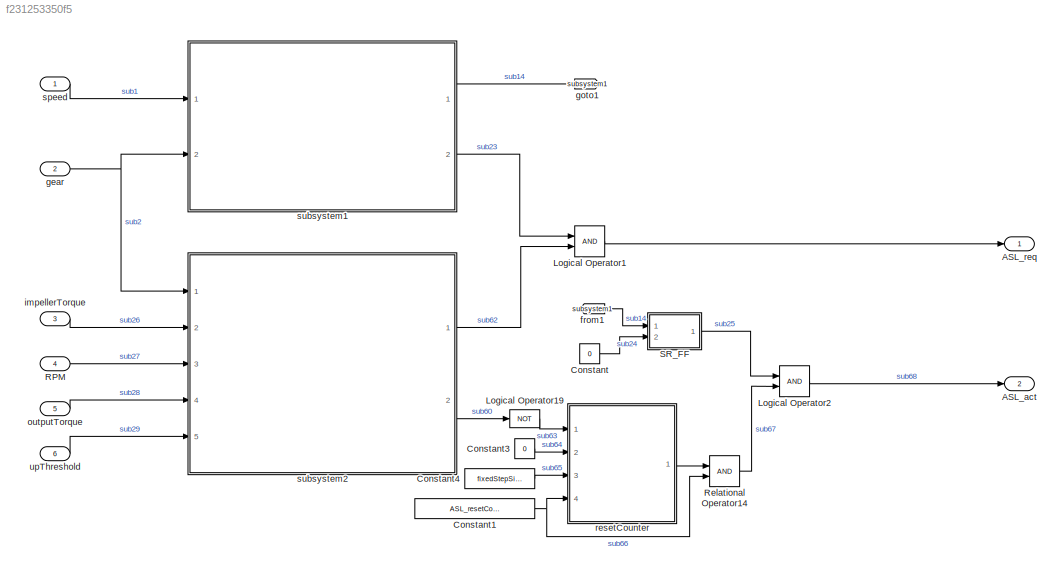
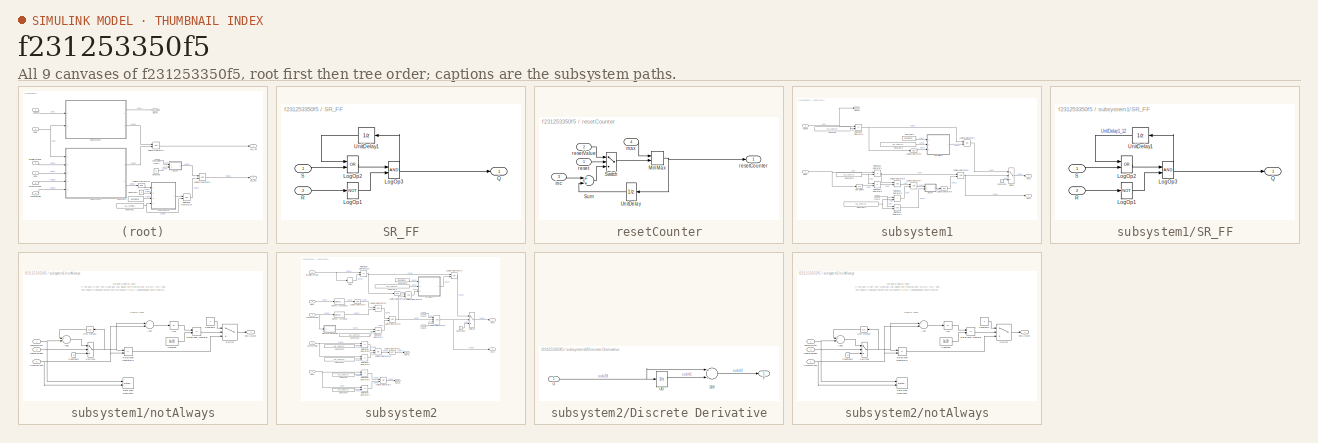
[diagram: thumbnail index - all 9 canvases of the model, root first then tree order]
MODEL slx_f231253350f5
KIND model
CONFIG AbsTol = auto
CONFIG EnableMultiTasking = off
CONFIG FixedStep = fixedStepSize
CONFIG MaxStep = auto
CONFIG MinStep = auto
CONFIG RelTol = 1e-3
CONFIG SampleTimeConstraint = Unconstrained
CONFIG Solver = FixedStepAuto
CONFIG SolverName = FixedStepAuto
CONFIG StartTime = 0.0
CONFIG StopTime = 10.0
BLOCK [Outport] ASL_act
  IconDisplay = Port number
  OutDataTypeStr = boolean
  Port = 2
  PortDimensions = 1
  SamplingMode = Sample based
  SignalType = real
  VectorParamsAs1DForOutWhenUnconnected = off
BLOCK [Outport] ASL_req
  IconDisplay = Port number
  OutDataTypeStr = boolean
  PortDimensions = 1
  SamplingMode = Sample based
  SignalType = real
  VectorParamsAs1DForOutWhenUnconnected = off
BLOCK [Constant] Constant
  OutDataTypeStr = boolean
  Value = 0
BLOCK [Constant] Constant1
  Value = ASL_resetCounterMax
BLOCK [Constant] Constant3
  Value = 0
BLOCK [Constant] Constant4
  Value = fixedStepSize
BLOCK [Logic] Logical Operator1
  AllPortsSameDT = off
  OutDataTypeStr = boolean
  Ports = [2, 1]
BLOCK [Logic] Logical Operator19
  AllPortsSameDT = off
  Operator = NOT
  OutDataTypeStr = boolean
  Ports = [1, 1]
BLOCK [Logic] Logical Operator2
  AllPortsSameDT = off
  OutDataTypeStr = boolean
  Ports = [2, 1]
BLOCK [Inport] RPM
  IconDisplay = Port number
  Port = 4
BLOCK [RelationalOperator] Relational Operator14
  InputSameDT = off
  OutDataTypeStr = boolean
  Ports = [2, 1]
BLOCK [SubSystem] SR_FF
  CopyFcn = set_param(gcbh,'LinkStatus','none');
  Ports = [2, 1]
  RequestExecContextInheritance = off
BLOCK [Logic] SR_FF/LogOp1
  Inputs = 1
  Operator = NOT
  OutDataTypeStr = boolean
  Ports = [1, 1]
  Tag = struct('inputs','1','comment',struct('text','','placement',1),'logdata',struct('maxnumvals',4096,'plotchannels',[],'loggingmode',3,'channels',1),'operator','NOT','output',struct('class','default','description','','address','','unit','-','name','$S_$B','variable','','type','Bool'),'date',733638.68643228011,'scalingvalid',0)
BLOCK [Logic] SR_FF/LogOp2
  Operator = OR
  OutDataTypeStr = boolean
  Ports = [2, 1]
  Tag = struct('inputs','2','comment',struct('text','','placement',1),'logdata',struct('maxnumvals',4096,'plotchannels',[],'loggingmode',3,'channels',1),'operator','AND','output',struct('class','default','description','','address','','unit','-','name','$S_$B','variable','','type','Bool'),'date',733638.68643680552,'scalingvalid',0)
BLOCK [Logic] SR_FF/LogOp3
  OutDataTypeStr = boolean
  Ports = [2, 1]
  Tag = struct('inputs','2','comment',struct('text','','placement',1),'logdata',struct('maxnumvals',4096,'plotchannels',[],'loggingmode',3,'channels',1),'operator','OR','output',struct('class','default','description','','address','','unit','-','name','$S_$B','variable','','type','Bool'),'date',733638.68644151615,'scalingvalid',0)
BLOCK [Outport] SR_FF/Q
  IconDisplay = Port number
  OutDataTypeStr = boolean
  VectorParamsAs1DForOutWhenUnconnected = off
BLOCK [Inport] SR_FF/R
  IconDisplay = Port number
  OutDataTypeStr = boolean
  Port = 2
BLOCK [Inport] SR_FF/S
  IconDisplay = Port number
  OutDataTypeStr = boolean
BLOCK [UnitDelay] SR_FF/UnitDelay1
  HasFrameUpgradeWarning = on
  SampleTime = -1
  Tag = struct('comment',struct('text','','placement',1),'logdata',struct('maxnumvals',4096,'plotchannels',[],'loggingmode',3,'channels',1),'output',struct('width',1,'name','$S_$B','unit','','type','Bool','offset',0,'max',NaN,'min',NaN,'freeze',1,'lsb',1,'arb',0,'class','default','address','','description','','autoscalingmode',1,'lowerheadroom',1,'upperheadroom',1,'headroomunit','bit','checkmin',0,'checkm...<+342ch>
BLOCK [From] from1
  AttributesFormatString = %<GotoTag>
  GotoTag = subsystem1
BLOCK [Inport] gear
  IconDisplay = Port number
  Port = 2
BLOCK [Goto] goto1
  AttributesFormatString = %<GotoTag>
  GotoTag = subsystem1
BLOCK [Inport] impellerTorque
  IconDisplay = Port number
  Port = 3
BLOCK [Inport] outputTorque
  IconDisplay = Port number
  Port = 5
BLOCK [SubSystem] resetCounter
  CopyFcn = set_param(gcbh,'LinkStatus','none');
  Ports = [4, 1]
  RequestExecContextInheritance = off
BLOCK [MinMax] resetCounter/MinMax
  Inputs = 2
  OutDataTypeStr = Inherit: Inherit via back propagation
  Ports = [2, 1]
  SaturateOnIntegerOverflow = off
  Tag = struct('comment',struct('text','','placement',1),'inputs','2','logdata',struct('maxnumvals',4096,'plotchannels',[],'loggingmode',3,'channels',1),'output',struct('width',1,'name','$S_$B','unit','','type','Float32','offset',0,'max',NaN,'min',NaN,'freeze',1,'lsb',1,'arb',0,'class','default','address','','description','','autoscalingmode',1,'lowerheadroom',1,'upperheadroom',1,'headroomunit','bit','che...<+151ch>
BLOCK [Sum] resetCounter/Sum
  AccumDataTypeStr = Inherit: Same as first input
  OutDataTypeStr = Inherit: Same as accumulator
  Ports = [2, 1]
  SaturateOnIntegerOverflow = off
  Tag = struct('comment',struct('text','','placement',1),'logdata',struct('maxnumvals',4096,'plotchannels',[],'loggingmode',3,'channels',1),'output',struct('width',1,'name','$S_$B','unit','','type','Float32','offset',0,'max',NaN,'min',NaN,'freeze',1,'lsb',1,'arb',0,'class','default','address','','description','','autoscalingmode',1,'lowerheadroom',1,'upperheadroom',1,'headroomunit','bit','checkmin',0,'che...<+135ch>
BLOCK [Switch] resetCounter/Switch
  Criteria = u2 ~= 0
  SaturateOnIntegerOverflow = off
  Tag = struct('comment',struct('text','','placement',1),'logdata',struct('maxnumvals',4096,'plotchannels',[],'loggingmode',3,'channels',1),'output',struct('width',1,'name','$S_$B','unit','','type','Float32','offset',0,'max',NaN,'min',NaN,'freeze',1,'lsb',1,'arb',0,'class','default','address','','description','','autoscalingmode',1,'lowerheadroom',1,'upperheadroom',1,'headroomunit','bit','checkmin',0,'che...<+388ch>
  Threshold = 0.5
BLOCK [UnitDelay] resetCounter/UnitDelay
  HasFrameUpgradeWarning = on
  SampleTime = -1
  Tag = struct('comment',struct('text','','placement',1),'logdata',struct('maxnumvals',4096,'plotchannels',[],'loggingmode',3,'channels',1),'output',struct('width',1,'name','$S_$B','unit','','type','Float32','offset',0,'max',NaN,'min',NaN,'freeze',1,'lsb',1,'arb',0,'class','default','address','','description','','autoscalingmode',1,'lowerheadroom',1,'upperheadroom',1,'headroomunit','bit','checkmin',0,'che...<+348ch>
BLOCK [Inport] resetCounter/inc
  IconDisplay = Port number
  Port = 3
BLOCK [Inport] resetCounter/max
  IconDisplay = Port number
  Port = 4
BLOCK [Inport] resetCounter/reset
  IconDisplay = Port number
BLOCK [Outport] resetCounter/resetCounter
  IconDisplay = Port number
  VectorParamsAs1DForOutWhenUnconnected = off
BLOCK [Inport] resetCounter/resetValue
  IconDisplay = Port number
  Port = 2
BLOCK [Inport] speed
  IconDisplay = Port number
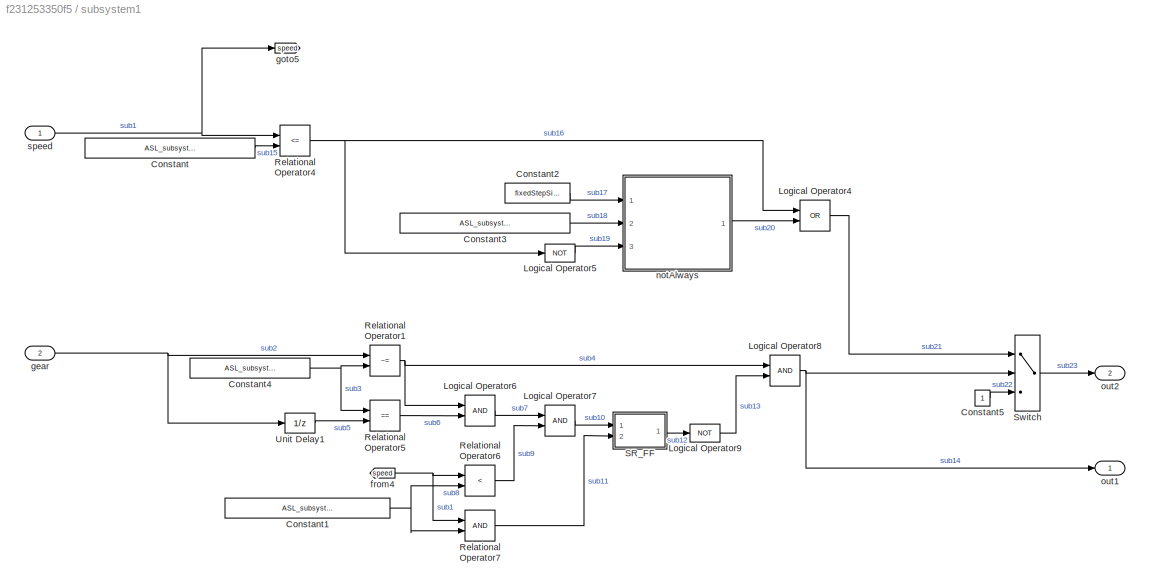
BLOCK [SubSystem] subsystem1
  Ports = [2, 2]
  RequestExecContextInheritance = off
BLOCK [Constant] subsystem1/Constant
  Value = ASL_subsystem1_speedThreshold
BLOCK [Constant] subsystem1/Constant1
  Value = ASL_subsystem1_speedThreshold
BLOCK [Constant] subsystem1/Constant2
  Value = fixedStepSize
BLOCK [Constant] subsystem1/Constant3
  Value = ASL_subsystem1_notAlwaysHorizon
BLOCK [Constant] subsystem1/Constant4
  Value = ASL_subsystem1_gear
BLOCK [Constant] subsystem1/Constant5
BLOCK [Logic] subsystem1/Logical Operator4
  AllPortsSameDT = off
  Operator = OR
  OutDataTypeStr = boolean
  Ports = [2, 1]
BLOCK [Logic] subsystem1/Logical Operator5
  AllPortsSameDT = off
  Operator = NOT
  OutDataTypeStr = boolean
  Ports = [1, 1]
BLOCK [Logic] subsystem1/Logical Operator6
  AllPortsSameDT = off
  OutDataTypeStr = boolean
  Ports = [2, 1]
BLOCK [Logic] subsystem1/Logical Operator7
  AllPortsSameDT = off
  OutDataTypeStr = boolean
  Ports = [2, 1]
BLOCK [Logic] subsystem1/Logical Operator8
  AllPortsSameDT = off
  OutDataTypeStr = boolean
  Ports = [2, 1]
BLOCK [Logic] subsystem1/Logical Operator9
  AllPortsSameDT = off
  Operator = NOT
  OutDataTypeStr = boolean
  Ports = [1, 1]
BLOCK [RelationalOperator] subsystem1/Relational Operator1
  InputSameDT = off
  Operator = ~=
  OutDataTypeStr = boolean
  Ports = [2, 1]
BLOCK [RelationalOperator] subsystem1/Relational Operator4
  InputSameDT = off
  Operator = <=
  OutDataTypeStr = boolean
  Ports = [2, 1]
BLOCK [RelationalOperator] subsystem1/Relational Operator5
  InputSameDT = off
  Operator = ==
  OutDataTypeStr = boolean
  Ports = [2, 1]
BLOCK [RelationalOperator] subsystem1/Relational Operator6
  InputSameDT = off
  Operator = <
  OutDataTypeStr = boolean
  Ports = [2, 1]
BLOCK [RelationalOperator] subsystem1/Relational Operator7
  InputSameDT = off
  OutDataTypeStr = boolean
  Ports = [2, 1]
BLOCK [SubSystem] subsystem1/SR_FF
  CopyFcn = set_param(gcbh,'LinkStatus','none');
  Ports = [2, 1]
  RequestExecContextInheritance = off
BLOCK [Logic] subsystem1/SR_FF/LogOp1
  Inputs = 1
  Operator = NOT
  OutDataTypeStr = boolean
  Ports = [1, 1]
  Tag = struct('inputs','1','comment',struct('text','','placement',1),'logdata',struct('maxnumvals',4096,'plotchannels',[],'loggingmode',3,'channels',1),'operator','NOT','output',struct('class','default','description','','address','','unit','-','name','$S_$B','variable','','type','Bool'),'date',733638.68643228011,'scalingvalid',0)
BLOCK [Logic] subsystem1/SR_FF/LogOp2
  Operator = OR
  OutDataTypeStr = boolean
  Ports = [2, 1]
  Tag = struct('inputs','2','comment',struct('text','','placement',1),'logdata',struct('maxnumvals',4096,'plotchannels',[],'loggingmode',3,'channels',1),'operator','AND','output',struct('class','default','description','','address','','unit','-','name','$S_$B','variable','','type','Bool'),'date',733638.68643680552,'scalingvalid',0)
BLOCK [Logic] subsystem1/SR_FF/LogOp3
  OutDataTypeStr = boolean
  Ports = [2, 1]
  Tag = struct('inputs','2','comment',struct('text','','placement',1),'logdata',struct('maxnumvals',4096,'plotchannels',[],'loggingmode',3,'channels',1),'operator','OR','output',struct('class','default','description','','address','','unit','-','name','$S_$B','variable','','type','Bool'),'date',733638.68644151615,'scalingvalid',0)
BLOCK [Outport] subsystem1/SR_FF/Q
  IconDisplay = Port number
  OutDataTypeStr = boolean
  VectorParamsAs1DForOutWhenUnconnected = off
BLOCK [Inport] subsystem1/SR_FF/R
  IconDisplay = Port number
  OutDataTypeStr = boolean
  Port = 2
BLOCK [Inport] subsystem1/SR_FF/S
  IconDisplay = Port number
  OutDataTypeStr = boolean
BLOCK [UnitDelay] subsystem1/SR_FF/UnitDelay1
  HasFrameUpgradeWarning = on
  SampleTime = -1
  Tag = struct('comment',struct('text','','placement',1),'logdata',struct('maxnumvals',4096,'plotchannels',[],'loggingmode',3,'channels',1),'output',struct('width',1,'name','$S_$B','unit','','type','Bool','offset',0,'max',NaN,'min',NaN,'freeze',1,'lsb',1,'arb',0,'class','default','address','','description','','autoscalingmode',1,'lowerheadroom',1,'upperheadroom',1,'headroomunit','bit','checkmin',0,'checkm...<+342ch>
BLOCK [Switch] subsystem1/Switch
  Criteria = u2 ~= 0
  InputSameDT = off
  SaturateOnIntegerOverflow = off
BLOCK [UnitDelay] subsystem1/Unit Delay1
  HasFrameUpgradeWarning = on
  InitialCondition = 1
  SampleTime = -1
BLOCK [From] subsystem1/from4
  AttributesFormatString = %<GotoTag>
  GotoTag = speed
BLOCK [Inport] subsystem1/gear
  IconDisplay = Port number
  Port = 2
BLOCK [Goto] subsystem1/goto5
  AttributesFormatString = %<GotoTag>
  GotoTag = speed
BLOCK [SubSystem] subsystem1/notAlways
  CopyFcn = set_param(gcbh,'LinkStatus','none');
  Ports = [3, 1]
  RequestExecContextInheritance = off
BLOCK [Abs] subsystem1/notAlways/Abs
  SaturateOnIntegerOverflow = off
BLOCK [Sum] subsystem1/notAlways/Add
  InputSameDT = off
  Inputs = +-
  OutDataTypeStr = Inherit: Inherit via internal rule
  Ports = [2, 1]
  SaturateOnIntegerOverflow = off
BLOCK [Sum] subsystem1/notAlways/Add2
  InputSameDT = off
  OutDataTypeStr = Inherit: Inherit via internal rule
  Ports = [2, 1]
  SaturateOnIntegerOverflow = off
BLOCK [Constant] subsystem1/notAlways/Constant
  Value = 1e-10
BLOCK [Constant] subsystem1/notAlways/Constant1
  OutDataTypeStr = boolean
BLOCK [Constant] subsystem1/notAlways/Constant8
  OutDataTypeStr = Inherit: Inherit via back propagation
  Value = 0
BLOCK [DataTypeDuplicate] subsystem1/notAlways/Data Type Duplicate
  Ports = [2]
BLOCK [RelationalOperator] subsystem1/notAlways/Relational Operator
  InputSameDT = off
  Operator = <=
  OutDataTypeStr = boolean
  Ports = [2, 1]
  RndMeth = Simplest
BLOCK [RelationalOperator] subsystem1/notAlways/Relational Operator14
  InputSameDT = off
  Operator = <=
  OutDataTypeStr = boolean
  Ports = [2, 1]
BLOCK [Switch] subsystem1/notAlways/Switch
  Criteria = u2 ~= 0
  InputSameDT = off
  SaturateOnIntegerOverflow = off
BLOCK [Switch] subsystem1/notAlways/Switch6
  Criteria = u2 ~= 0
  InputSameDT = off
  SaturateOnIntegerOverflow = off
BLOCK [UnitDelay] subsystem1/notAlways/Unit Delay2
  HasFrameUpgradeWarning = on
  SampleTime = -1
BLOCK [Inport] subsystem1/notAlways/inputBoolean
  IconDisplay = Port number
  Port = 3
BLOCK [Outport] subsystem1/notAlways/notAlways
  IconDisplay = Port number
  VectorParamsAs1DForOutWhenUnconnected = off
BLOCK [Inport] subsystem1/notAlways/sampleTime
  IconDisplay = Port number
BLOCK [Inport] subsystem1/notAlways/timeHorizon
  IconDisplay = Port number
  Port = 2
BLOCK [Outport] subsystem1/out1
  IconDisplay = Port number
  VectorParamsAs1DForOutWhenUnconnected = off
BLOCK [Outport] subsystem1/out2
  IconDisplay = Port number
  Port = 2
  VectorParamsAs1DForOutWhenUnconnected = off
BLOCK [Inport] subsystem1/speed
  IconDisplay = Port number
  Interpolate = off
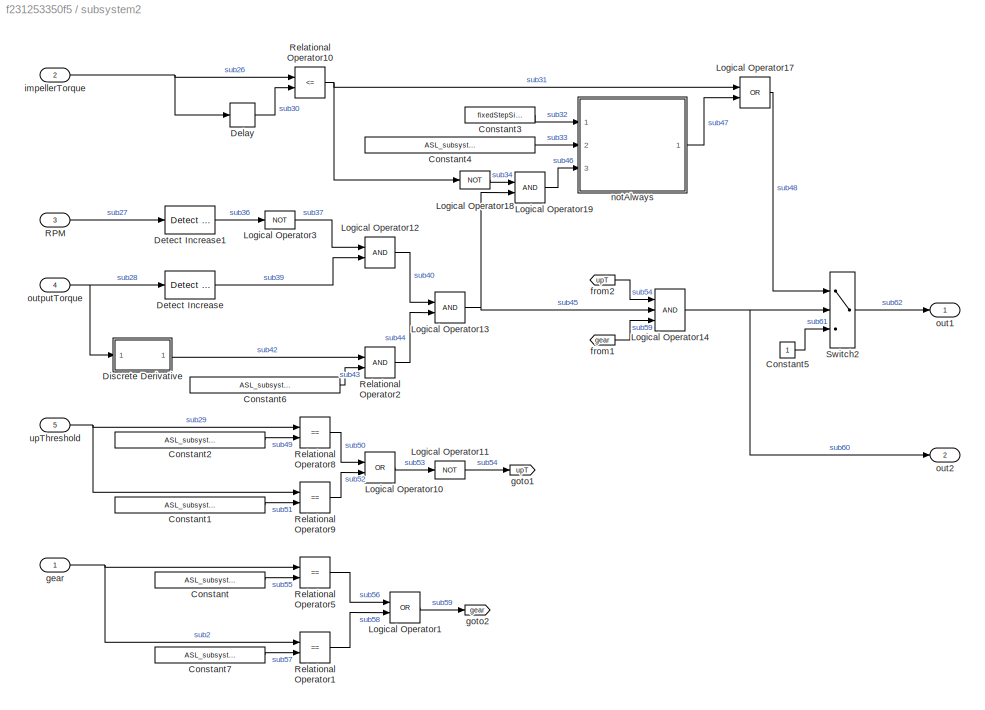
BLOCK [SubSystem] subsystem2
  Ports = [5, 2]
  RequestExecContextInheritance = off
BLOCK [Constant] subsystem2/Constant
  Value = ASL_subsystem2_gear
BLOCK [Constant] subsystem2/Constant1
  Value = ASL_subsystem2_upThreshold2
BLOCK [Constant] subsystem2/Constant2
  Value = ASL_subsystem2_upThreshold1
BLOCK [Constant] subsystem2/Constant3
  Value = fixedStepSize
BLOCK [Constant] subsystem2/Constant4
  Value = ASL_subsystem2_notAlwaysHorizon
BLOCK [Constant] subsystem2/Constant5
BLOCK [Constant] subsystem2/Constant6
  Value = ASL_subsystem2_TorqueValue
BLOCK [Constant] subsystem2/Constant7
  Value = ASL_subsystem2_gear2
BLOCK [Delay] subsystem2/Delay
  DelayLength = 1
  InitialCondition = 0
  InputPortMap = u0
  Ports = [1, 1]
BLOCK [Reference] subsystem2/Detect Increase  REF=simulink/Logic and Bit
Operations/Detect
Increase
  Ports = [1, 1]
  SourceBlock = simulink/Logic and Bit\nOperations/Detect\nIncrease
  SourceProductBaseCode = SL
  SourceProductName = Simulink
  SourceType = Detect Increase
BLOCK [Reference] subsystem2/Detect Increase1  REF=simulink/Logic and Bit
Operations/Detect
Increase
  Ports = [1, 1]
  SourceBlock = simulink/Logic and Bit\nOperations/Detect\nIncrease
  SourceProductBaseCode = SL
  SourceProductName = Simulink
  SourceType = Detect Increase
BLOCK [SubSystem] subsystem2/Discrete Derivative
  Ports = [1, 1]
  RequestExecContextInheritance = off
BLOCK [Sum] subsystem2/Discrete Derivative/Diff
  Description = Add in CPU
  InputSameDT = off
  Inputs = +-
  OutDataTypeStr = double
  OutMax = 100000
  OutMin = -10000
  Ports = [2, 1]
  SaturateOnIntegerOverflow = off
BLOCK [Inport] subsystem2/Discrete Derivative/U
  IconDisplay = Port number
BLOCK [UnitDelay] subsystem2/Discrete Derivative/UD
  Description = Store in Global RAM
  DisableCoverage = on
  HasFrameUpgradeWarning = on
  SampleTime = -1
BLOCK [Outport] subsystem2/Discrete Derivative/Y
  IconDisplay = Port number
  InitialOutput = 0
  OutMax = 10000
  OutMin = -10000
  VectorParamsAs1DForOutWhenUnconnected = off
BLOCK [Logic] subsystem2/Logical Operator1
  AllPortsSameDT = off
  Operator = OR
  OutDataTypeStr = boolean
  Ports = [2, 1]
BLOCK [Logic] subsystem2/Logical Operator10
  AllPortsSameDT = off
  Operator = OR
  OutDataTypeStr = boolean
  Ports = [2, 1]
BLOCK [Logic] subsystem2/Logical Operator11
  AllPortsSameDT = off
  Operator = NOT
  OutDataTypeStr = boolean
  Ports = [1, 1]
BLOCK [Logic] subsystem2/Logical Operator12
  AllPortsSameDT = off
  OutDataTypeStr = boolean
  Ports = [2, 1]
BLOCK [Logic] subsystem2/Logical Operator13
  AllPortsSameDT = off
  OutDataTypeStr = boolean
  Ports = [2, 1]
BLOCK [Logic] subsystem2/Logical Operator14
  AllPortsSameDT = off
  Inputs = 3
  OutDataTypeStr = boolean
  Ports = [3, 1]
BLOCK [Logic] subsystem2/Logical Operator17
  AllPortsSameDT = off
  Operator = OR
  OutDataTypeStr = boolean
  Ports = [2, 1]
BLOCK [Logic] subsystem2/Logical Operator18
  AllPortsSameDT = off
  Operator = NOT
  OutDataTypeStr = boolean
  Ports = [1, 1]
BLOCK [Logic] subsystem2/Logical Operator19
  AllPortsSameDT = off
  OutDataTypeStr = boolean
  Ports = [2, 1]
BLOCK [Logic] subsystem2/Logical Operator3
  AllPortsSameDT = off
  Operator = NOT
  OutDataTypeStr = boolean
  Ports = [1, 1]
BLOCK [Inport] subsystem2/RPM
  IconDisplay = Port number
  Port = 3
BLOCK [RelationalOperator] subsystem2/Relational Operator1
  InputSameDT = off
  Operator = ==
  OutDataTypeStr = boolean
  Ports = [2, 1]
BLOCK [RelationalOperator] subsystem2/Relational Operator10
  InputSameDT = off
  Operator = <=
  OutDataTypeStr = boolean
  Ports = [2, 1]
BLOCK [RelationalOperator] subsystem2/Relational Operator2
  InputSameDT = off
  OutDataTypeStr = boolean
  Ports = [2, 1]
BLOCK [RelationalOperator] subsystem2/Relational Operator5
  InputSameDT = off
  Operator = ==
  OutDataTypeStr = boolean
  Ports = [2, 1]
BLOCK [RelationalOperator] subsystem2/Relational Operator8
  InputSameDT = off
  Operator = ==
  OutDataTypeStr = boolean
  Ports = [2, 1]
BLOCK [RelationalOperator] subsystem2/Relational Operator9
  InputSameDT = off
  Operator = ==
  OutDataTypeStr = boolean
  Ports = [2, 1]
BLOCK [Switch] subsystem2/Switch2
  Criteria = u2 ~= 0
  InputSameDT = off
  SaturateOnIntegerOverflow = off
BLOCK [From] subsystem2/from1
  AttributesFormatString = %<GotoTag>
  GotoTag = gear
BLOCK [From] subsystem2/from2
  AttributesFormatString = %<GotoTag>
  GotoTag = upT
BLOCK [Inport] subsystem2/gear
  IconDisplay = Port number
  Interpolate = off
BLOCK [Goto] subsystem2/goto1
  AttributesFormatString = %<GotoTag>
  GotoTag = upT
BLOCK [Goto] subsystem2/goto2
  AttributesFormatString = %<GotoTag>
  GotoTag = gear
BLOCK [Inport] subsystem2/impellerTorque
  IconDisplay = Port number
  Port = 2
BLOCK [SubSystem] subsystem2/notAlways
  CopyFcn = set_param(gcbh,'LinkStatus','none');
  Ports = [3, 1]
  RequestExecContextInheritance = off
BLOCK [Abs] subsystem2/notAlways/Abs
  SaturateOnIntegerOverflow = off
BLOCK [Sum] subsystem2/notAlways/Add
  InputSameDT = off
  Inputs = +-
  OutDataTypeStr = Inherit: Inherit via internal rule
  Ports = [2, 1]
  SaturateOnIntegerOverflow = off
BLOCK [Sum] subsystem2/notAlways/Add2
  InputSameDT = off
  OutDataTypeStr = Inherit: Inherit via internal rule
  Ports = [2, 1]
  SaturateOnIntegerOverflow = off
BLOCK [Constant] subsystem2/notAlways/Constant
  Value = 1e-10
BLOCK [Constant] subsystem2/notAlways/Constant1
  OutDataTypeStr = boolean
BLOCK [Constant] subsystem2/notAlways/Constant8
  OutDataTypeStr = Inherit: Inherit via back propagation
  Value = 0
BLOCK [DataTypeDuplicate] subsystem2/notAlways/Data Type Duplicate
  Ports = [2]
BLOCK [RelationalOperator] subsystem2/notAlways/Relational Operator
  InputSameDT = off
  Operator = <=
  OutDataTypeStr = boolean
  Ports = [2, 1]
  RndMeth = Simplest
BLOCK [RelationalOperator] subsystem2/notAlways/Relational Operator14
  InputSameDT = off
  Operator = <=
  OutDataTypeStr = boolean
  Ports = [2, 1]
BLOCK [Switch] subsystem2/notAlways/Switch
  Criteria = u2 ~= 0
  InputSameDT = off
  SaturateOnIntegerOverflow = off
BLOCK [Switch] subsystem2/notAlways/Switch6
  Criteria = u2 ~= 0
  InputSameDT = off
  SaturateOnIntegerOverflow = off
BLOCK [UnitDelay] subsystem2/notAlways/Unit Delay2
  HasFrameUpgradeWarning = on
  SampleTime = -1
BLOCK [Inport] subsystem2/notAlways/inputBoolean
  IconDisplay = Port number
  Port = 3
BLOCK [Outport] subsystem2/notAlways/notAlways
  IconDisplay = Port number
  VectorParamsAs1DForOutWhenUnconnected = off
BLOCK [Inport] subsystem2/notAlways/sampleTime
  IconDisplay = Port number
BLOCK [Inport] subsystem2/notAlways/timeHorizon
  IconDisplay = Port number
  Port = 2
BLOCK [Outport] subsystem2/out1
  IconDisplay = Port number
  VectorParamsAs1DForOutWhenUnconnected = off
BLOCK [Outport] subsystem2/out2
  IconDisplay = Port number
  Port = 2
  VectorParamsAs1DForOutWhenUnconnected = off
BLOCK [Inport] subsystem2/outputTorque
  IconDisplay = Port number
  Port = 4
BLOCK [Inport] subsystem2/upThreshold
  IconDisplay = Port number
  Interpolate = off
  Port = 5
BLOCK [Inport] upThreshold
  IconDisplay = Port number
  Port = 6
ANNOTATION subsystem1/notAlways: We add a special case: If the sum is very very close but just above the timeHorizon, we will still send TRUE as output! The reason is because sometimes the counter is e.g. 1.000000000001 and timeHorizon is 1, which is essentially just a floating point error.
ANNOTATION subsystem1/notAlways: Special check
ANNOTATION subsystem2/notAlways: We add a special case: If the sum is very very close but just above the timeHorizon, we will still send TRUE as output! The reason is because sometimes the counter is e.g. 1.000000000001 and timeHorizon is 1, which is essentially just a floating point error.
ANNOTATION subsystem2/notAlways: Special check
NET Constant1:1 -> Relational Operator14:2, resetCounter:4
LINE Constant3:1 -> resetCounter:2
LINE Constant4:1 -> resetCounter:3
LINE Constant:1 -> SR_FF:2
LINE Logical Operator19:1 -> resetCounter:1
LINE Logical Operator1:1 -> ASL_req:1
LINE Logical Operator2:1 -> ASL_act:1
LINE RPM:1 -> subsystem2:3
LINE Relational Operator14:1 -> Logical Operator2:2
LINE SR_FF/LogOp1:1 -> SR_FF/LogOp3:2
LINE SR_FF/LogOp2:1 -> SR_FF/LogOp3:1
NET SR_FF/LogOp3:1 -> SR_FF/Q:1, SR_FF/UnitDelay1:1
LINE SR_FF/R:1 -> SR_FF/LogOp1:1
LINE SR_FF/S:1 -> SR_FF/LogOp2:2
LINE SR_FF/UnitDelay1:1 -> SR_FF/LogOp2:1
LINE SR_FF:1 -> Logical Operator2:1
LINE from1:1 -> SR_FF:1
NET gear:1 -> subsystem1:2, subsystem2:1
LINE impellerTorque:1 -> subsystem2:2
LINE outputTorque:1 -> subsystem2:4
NET resetCounter/MinMax:1 -> resetCounter/UnitDelay:1, resetCounter/resetCounter:1
LINE resetCounter/Sum:1 -> resetCounter/Switch:3
LINE resetCounter/Switch:1 -> resetCounter/MinMax:2
LINE resetCounter/UnitDelay:1 -> resetCounter/Sum:2
LINE resetCounter/inc:1 -> resetCounter/Sum:1
LINE resetCounter/max:1 -> resetCounter/MinMax:1
LINE resetCounter/reset:1 -> resetCounter/Switch:2
LINE resetCounter/resetValue:1 -> resetCounter/Switch:1
LINE resetCounter:1 -> Relational Operator14:1
LINE speed:1 -> subsystem1:1
NET subsystem1/Constant1:1 -> subsystem1/Relational Operator6:2, subsystem1/Relational Operator7:2
LINE subsystem1/Constant2:1 -> subsystem1/notAlways:1
LINE subsystem1/Constant3:1 -> subsystem1/notAlways:2
NET subsystem1/Constant4:1 -> subsystem1/Relational Operator1:2, subsystem1/Relational Operator5:1
LINE subsystem1/Constant5:1 -> subsystem1/Switch:3
LINE subsystem1/Constant:1 -> subsystem1/Relational Operator4:2
LINE subsystem1/Logical Operator4:1 -> subsystem1/Switch:1
LINE subsystem1/Logical Operator5:1 -> subsystem1/notAlways:3
LINE subsystem1/Logical Operator6:1 -> subsystem1/Logical Operator7:1
LINE subsystem1/Logical Operator7:1 -> subsystem1/SR_FF:1
NET subsystem1/Logical Operator8:1 -> subsystem1/Switch:2, subsystem1/out1:1
LINE subsystem1/Logical Operator9:1 -> subsystem1/Logical Operator8:2
NET subsystem1/Relational Operator1:1 -> subsystem1/Logical Operator6:1, subsystem1/Logical Operator8:1
NET subsystem1/Relational Operator4:1 -> subsystem1/Logical Operator4:1, subsystem1/Logical Operator5:1
LINE subsystem1/Relational Operator5:1 -> subsystem1/Logical Operator6:2
LINE subsystem1/Relational Operator6:1 -> subsystem1/Logical Operator7:2
LINE subsystem1/Relational Operator7:1 -> subsystem1/SR_FF:2
LINE subsystem1/SR_FF/LogOp1:1 -> subsystem1/SR_FF/LogOp3:2
LINE subsystem1/SR_FF/LogOp2:1 -> subsystem1/SR_FF/LogOp3:1
NET subsystem1/SR_FF/LogOp3:1 -> subsystem1/SR_FF/Q:1, subsystem1/SR_FF/UnitDelay1:1
LINE subsystem1/SR_FF/R:1 -> subsystem1/SR_FF/LogOp1:1
LINE subsystem1/SR_FF/S:1 -> subsystem1/SR_FF/LogOp2:2
LINE subsystem1/SR_FF/UnitDelay1:1 -> subsystem1/SR_FF/LogOp2:1
LINE subsystem1/SR_FF:1 -> subsystem1/Logical Operator9:1
LINE subsystem1/Switch:1 -> subsystem1/out2:1
LINE subsystem1/Unit Delay1:1 -> subsystem1/Relational Operator5:2
NET subsystem1/from4:1 -> subsystem1/Relational Operator6:1, subsystem1/Relational Operator7:1
NET subsystem1/gear:1 -> subsystem1/Relational Operator1:1, subsystem1/Unit Delay1:1
LINE subsystem1/notAlways/Abs:1 -> subsystem1/notAlways/Relational Operator:1
LINE subsystem1/notAlways/Add2:1 -> subsystem1/notAlways/Switch6:1
LINE subsystem1/notAlways/Add:1 -> subsystem1/notAlways/Abs:1
LINE subsystem1/notAlways/Constant1:1 -> subsystem1/notAlways/Switch:1
LINE subsystem1/notAlways/Constant8:1 -> subsystem1/notAlways/Switch6:3
LINE subsystem1/notAlways/Constant:1 -> subsystem1/notAlways/Relational Operator:2
LINE subsystem1/notAlways/Relational Operator14:1 -> subsystem1/notAlways/Switch:3
LINE subsystem1/notAlways/Relational Operator:1 -> subsystem1/notAlways/Switch:2
NET subsystem1/notAlways/Switch6:1 -> subsystem1/notAlways/Add:1, subsystem1/notAlways/Relational Operator14:1, subsystem1/notAlways/Unit Delay2:1
LINE subsystem1/notAlways/Switch:1 -> subsystem1/notAlways/notAlways:1
LINE subsystem1/notAlways/Unit Delay2:1 -> subsystem1/notAlways/Add2:1
LINE subsystem1/notAlways/inputBoolean:1 -> subsystem1/notAlways/Switch6:2
NET subsystem1/notAlways/sampleTime:1 -> subsystem1/notAlways/Add2:2, subsystem1/notAlways/Data Type Duplicate:1
NET subsystem1/notAlways/timeHorizon:1 -> subsystem1/notAlways/Add:2, subsystem1/notAlways/Data Type Duplicate:2, subsystem1/notAlways/Relational Operator14:2
LINE subsystem1/notAlways:1 -> subsystem1/Logical Operator4:2
NET subsystem1/speed:1 -> subsystem1/Relational Operator4:1, subsystem1/goto5:1
LINE subsystem1:1 -> goto1:1
LINE subsystem1:2 -> Logical Operator1:1
LINE subsystem2/Constant1:1 -> subsystem2/Relational Operator9:2
LINE subsystem2/Constant2:1 -> subsystem2/Relational Operator8:2
LINE subsystem2/Constant3:1 -> subsystem2/notAlways:1
LINE subsystem2/Constant4:1 -> subsystem2/notAlways:2
LINE subsystem2/Constant5:1 -> subsystem2/Switch2:3
LINE subsystem2/Constant6:1 -> subsystem2/Relational Operator2:2
LINE subsystem2/Constant7:1 -> subsystem2/Relational Operator1:2
LINE subsystem2/Constant:1 -> subsystem2/Relational Operator5:2
LINE subsystem2/Delay:1 -> subsystem2/Relational Operator10:2
LINE subsystem2/Detect Increase1:1 -> subsystem2/Logical Operator3:1
LINE subsystem2/Detect Increase:1 -> subsystem2/Logical Operator12:2
LINE subsystem2/Discrete Derivative/Diff:1 -> subsystem2/Discrete Derivative/Y:1
NET subsystem2/Discrete Derivative/U:1 -> subsystem2/Discrete Derivative/Diff:1, subsystem2/Discrete Derivative/UD:1
LINE subsystem2/Discrete Derivative/UD:1 -> subsystem2/Discrete Derivative/Diff:2
LINE subsystem2/Discrete Derivative:1 -> subsystem2/Relational Operator2:1
LINE subsystem2/Logical Operator10:1 -> subsystem2/Logical Operator11:1
LINE subsystem2/Logical Operator11:1 -> subsystem2/goto1:1
LINE subsystem2/Logical Operator12:1 -> subsystem2/Logical Operator13:1
NET subsystem2/Logical Operator13:1 -> subsystem2/Logical Operator14:2, subsystem2/Logical Operator19:2
NET subsystem2/Logical Operator14:1 -> subsystem2/Switch2:2, subsystem2/out2:1
LINE subsystem2/Logical Operator17:1 -> subsystem2/Switch2:1
LINE subsystem2/Logical Operator18:1 -> subsystem2/Logical Operator19:1
LINE subsystem2/Logical Operator19:1 -> subsystem2/notAlways:3
LINE subsystem2/Logical Operator1:1 -> subsystem2/goto2:1
LINE subsystem2/Logical Operator3:1 -> subsystem2/Logical Operator12:1
LINE subsystem2/RPM:1 -> subsystem2/Detect Increase1:1
NET subsystem2/Relational Operator10:1 -> subsystem2/Logical Operator17:1, subsystem2/Logical Operator18:1
LINE subsystem2/Relational Operator1:1 -> subsystem2/Logical Operator1:2
LINE subsystem2/Relational Operator2:1 -> subsystem2/Logical Operator13:2
LINE subsystem2/Relational Operator5:1 -> subsystem2/Logical Operator1:1
LINE subsystem2/Relational Operator8:1 -> subsystem2/Logical Operator10:1
LINE subsystem2/Relational Operator9:1 -> subsystem2/Logical Operator10:2
LINE subsystem2/Switch2:1 -> subsystem2/out1:1
LINE subsystem2/from1:1 -> subsystem2/Logical Operator14:3
LINE subsystem2/from2:1 -> subsystem2/Logical Operator14:1
NET subsystem2/gear:1 -> subsystem2/Relational Operator1:1, subsystem2/Relational Operator5:1
NET subsystem2/impellerTorque:1 -> subsystem2/Delay:1, subsystem2/Relational Operator10:1
LINE subsystem2/notAlways/Abs:1 -> subsystem2/notAlways/Relational Operator:1
LINE subsystem2/notAlways/Add2:1 -> subsystem2/notAlways/Switch6:1
LINE subsystem2/notAlways/Add:1 -> subsystem2/notAlways/Abs:1
LINE subsystem2/notAlways/Constant1:1 -> subsystem2/notAlways/Switch:1
LINE subsystem2/notAlways/Constant8:1 -> subsystem2/notAlways/Switch6:3
LINE subsystem2/notAlways/Constant:1 -> subsystem2/notAlways/Relational Operator:2
LINE subsystem2/notAlways/Relational Operator14:1 -> subsystem2/notAlways/Switch:3
LINE subsystem2/notAlways/Relational Operator:1 -> subsystem2/notAlways/Switch:2
NET subsystem2/notAlways/Switch6:1 -> subsystem2/notAlways/Add:1, subsystem2/notAlways/Relational Operator14:1, subsystem2/notAlways/Unit Delay2:1
LINE subsystem2/notAlways/Switch:1 -> subsystem2/notAlways/notAlways:1
LINE subsystem2/notAlways/Unit Delay2:1 -> subsystem2/notAlways/Add2:1
LINE subsystem2/notAlways/inputBoolean:1 -> subsystem2/notAlways/Switch6:2
NET subsystem2/notAlways/sampleTime:1 -> subsystem2/notAlways/Add2:2, subsystem2/notAlways/Data Type Duplicate:1
NET subsystem2/notAlways/timeHorizon:1 -> subsystem2/notAlways/Add:2, subsystem2/notAlways/Data Type Duplicate:2, subsystem2/notAlways/Relational Operator14:2
LINE subsystem2/notAlways:1 -> subsystem2/Logical Operator17:2
NET subsystem2/outputTorque:1 -> subsystem2/Detect Increase:1, subsystem2/Discrete Derivative:1
NET subsystem2/upThreshold:1 -> subsystem2/Relational Operator8:1, subsystem2/Relational Operator9:1
LINE subsystem2:1 -> Logical Operator1:2
LINE subsystem2:2 -> Logical Operator19:1
LINE upThreshold:1 -> subsystem2:5
note: NET lines group one-source signal fan-out (src -> all destinations, sorted); 1:1 wires keep LINE
